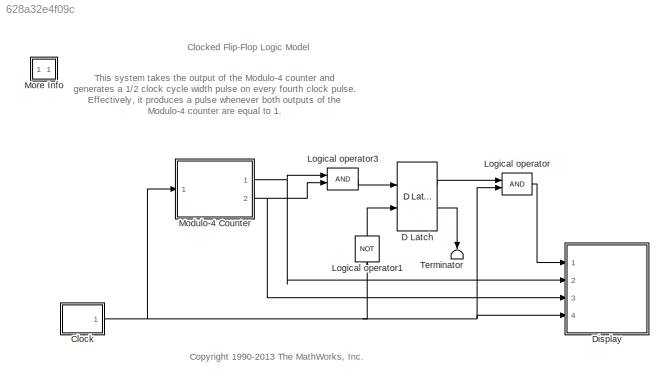
MODEL slx_628a32e4f09c
KIND model
CONFIG AbsTol = 1e-6
CONFIG EnableMultiTasking = off
CONFIG FixedStep = auto
CONFIG MaxStep = auto
CONFIG MinStep = auto
CONFIG RelTol = 1e-3
CONFIG SampleTimeConstraint = Unconstrained
CONFIG SolverName = VariableStepDiscrete
CONFIG StartFcn = set_param('sldemo_flipflop/Display/Scope','Open','on');
CONFIG StartTime = 0.0
CONFIG StopTime = 100
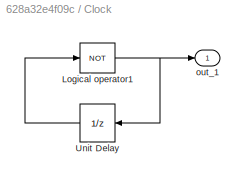
BLOCK [SubSystem] Clock
  Ports = [0, 1]
  RequestExecContextInheritance = off
BLOCK [Logic] Clock/Logical operator1
  Inputs = 1
  Operator = NOT
  Ports = [1, 1]
BLOCK [UnitDelay] Clock/Unit Delay
  HasFrameUpgradeWarning = on
  InitialCondition = boolean(0)
  SampleTime = onwidth
BLOCK [Outport] Clock/out_1
  InitialOutput = 0
  VectorParamsAs1DForOutWhenUnconnected = off
BLOCK [Reference] D Latch  REF=simulink_extras/Flip Flops/D Latch
  Ports = [2, 2]
  SourceBlock = simulink_extras/Flip Flops/D Latch
  SourceProductBaseCode = SL
  SourceType = DLatch
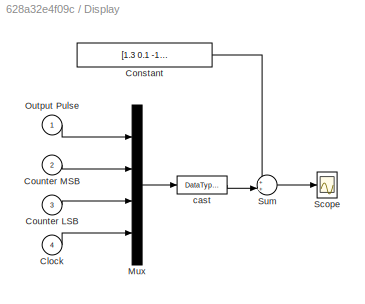
BLOCK [SubSystem] Display
  Ports = [4]
  RequestExecContextInheritance = off
BLOCK [Inport] Display/Clock
  Port = 4
BLOCK [Constant] Display/Constant
  Value = [1.3 0.1 -1.2 -2.4]
BLOCK [Inport] Display/Counter LSB
  Port = 3
BLOCK [Inport] Display/Counter MSB
  Port = 2
BLOCK [Mux] Display/Mux
  DisplayOption = bar
  Ports = [4, 1]
BLOCK [Inport] Display/Output Pulse
BLOCK [Scope] Display/Scope
  Floating = off
  NumInputPorts = 1
  Ports = [1]
  ScopeSpecificationString = C++SS(StrPVP('Location','[41, 485, 714, 942]'),StrPVP('Open','off'),StrPVP('TickLabels','on'),MxPVP('AxesTitles',54,'struct(''axes1'',''%<SignalLabel>'')'),StrPVP('ShowLegends','off'),StrPVP('TimeRange','100             '),StrPVP('YMin','-3'),StrPVP('YMax','3'),StrPVP('BlockParamSampleTime','0'),StrPVP('LimitDataPoints','on'),StrPVP('DataFormat','Array'),StrPVP('Decimation','1'),StrPVP('BlockParam...<+20ch>
BLOCK [Sum] Display/Sum
  InputSameDT = on
  Inputs = ++|
  OutDataTypeStr = Inherit: Same as first input
  Ports = [2, 1]
  SaturateOnIntegerOverflow = on
BLOCK [DataTypeConversion] Display/cast
  OutDataTypeStr = double
BLOCK [Logic] Logical operator
  IconShape = distinctive
  Ports = [2, 1]
BLOCK [Logic] Logical operator1
  IconShape = distinctive
  Inputs = 1
  NameLocation = right
  Operator = NOT
  Ports = [1, 1]
BLOCK [Logic] Logical operator3
  IconShape = distinctive
  Ports = [2, 1]
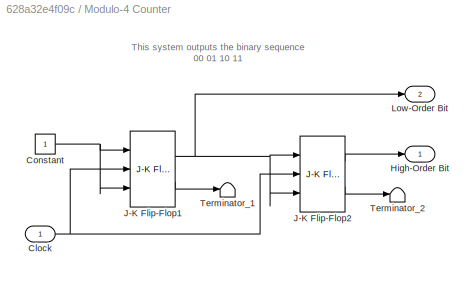
BLOCK [SubSystem] Modulo-4 Counter
  Ports = [1, 2]
  RequestExecContextInheritance = off
BLOCK [Inport] Modulo-4 Counter/Clock
BLOCK [Constant] Modulo-4 Counter/Constant
  OutDataTypeStr = boolean
BLOCK [Outport] Modulo-4 Counter/High-Order Bit
  InitialOutput = 0
  VectorParamsAs1DForOutWhenUnconnected = off
BLOCK [Reference] Modulo-4 Counter/J-K Flip-Flop1  REF=simulink_extras/Flip Flops/J-K
Flip-Flop
  NameLocation = top
  Ports = [3, 2]
  SourceBlock = simulink_extras/Flip Flops/J-K\nFlip-Flop
  SourceProductBaseCode = SL
  SourceType = JKFlipFlop
BLOCK [Reference] Modulo-4 Counter/J-K Flip-Flop2  REF=simulink_extras/Flip Flops/J-K
Flip-Flop
  NameLocation = top
  Ports = [3, 2]
  SourceBlock = simulink_extras/Flip Flops/J-K\nFlip-Flop
  SourceProductBaseCode = SL
  SourceType = JKFlipFlop
BLOCK [Outport] Modulo-4 Counter/Low-Order Bit
  InitialOutput = 0
  Port = 2
  VectorParamsAs1DForOutWhenUnconnected = off
BLOCK [Terminator] Modulo-4 Counter/Terminator_1
BLOCK [Terminator] Modulo-4 Counter/Terminator_2
BLOCK [SubSystem] More Info
  OpenFcn = showExample('simulink_general/sldemo_flipflopExample')
  Ports = []
  RequestExecContextInheritance = off
BLOCK [Terminator] Terminator
  NameLocation = left
ANNOTATION (root): Clocked Flip-Flop Logic Model
ANNOTATION (root): <copyright redacted>
ANNOTATION (root): This system takes the output of the Modulo-4 counter and generates a 1/2 clock cycle width pulse on every fourth clock pulse. Effectively, it produces a pulse whenever both outputs of the Modulo-4 counter are equal to 1.
ANNOTATION Modulo-4 Counter: This system outputs the binary sequence 00 01 10 11
NET Clock/Logical operator1:1 -> Clock/Unit Delay:1, Clock/out_1:1
LINE Clock/Unit Delay:1 -> Clock/Logical operator1:1
NET Clock:1 -> Display:4, Logical operator1:1, Logical operator:2, Modulo-4 Counter:1
LINE D Latch:1 -> Logical operator:1
LINE D Latch:2 -> Terminator:1
LINE Display/Clock:1 -> Display/Mux:4
LINE Display/Constant:1 -> Display/Sum:1
LINE Display/Counter LSB:1 -> Display/Mux:3
LINE Display/Counter MSB:1 -> Display/Mux:2
LINE Display/Mux:1 -> Display/cast:1
LINE Display/Output Pulse:1 -> Display/Mux:1
LINE Display/Sum:1 -> Display/Scope:1
LINE Display/cast:1 -> Display/Sum:2
LINE Logical operator1:1 -> D Latch:2
LINE Logical operator3:1 -> D Latch:1
LINE Logical operator:1 -> Display:1
NET Modulo-4 Counter/Clock:1 -> Modulo-4 Counter/J-K Flip-Flop1:2, Modulo-4 Counter/J-K Flip-Flop2:2
NET Modulo-4 Counter/Constant:1 -> Modulo-4 Counter/J-K Flip-Flop1:1, Modulo-4 Counter/J-K Flip-Flop1:3
NET Modulo-4 Counter/J-K Flip-Flop1:1 -> Modulo-4 Counter/J-K Flip-Flop2:1, Modulo-4 Counter/J-K Flip-Flop2:3, Modulo-4 Counter/Low-Order Bit:1
LINE Modulo-4 Counter/J-K Flip-Flop1:2 -> Modulo-4 Counter/Terminator_1:1
LINE Modulo-4 Counter/J-K Flip-Flop2:1 -> Modulo-4 Counter/High-Order Bit:1
LINE Modulo-4 Counter/J-K Flip-Flop2:2 -> Modulo-4 Counter/Terminator_2:1
NET Modulo-4 Counter:1 -> Display:2, Logical operator3:1
NET Modulo-4 Counter:2 -> Display:3, Logical operator3:2
note: NET lines group one-source signal fan-out (src -> all destinations, sorted); 1:1 wires keep LINE
